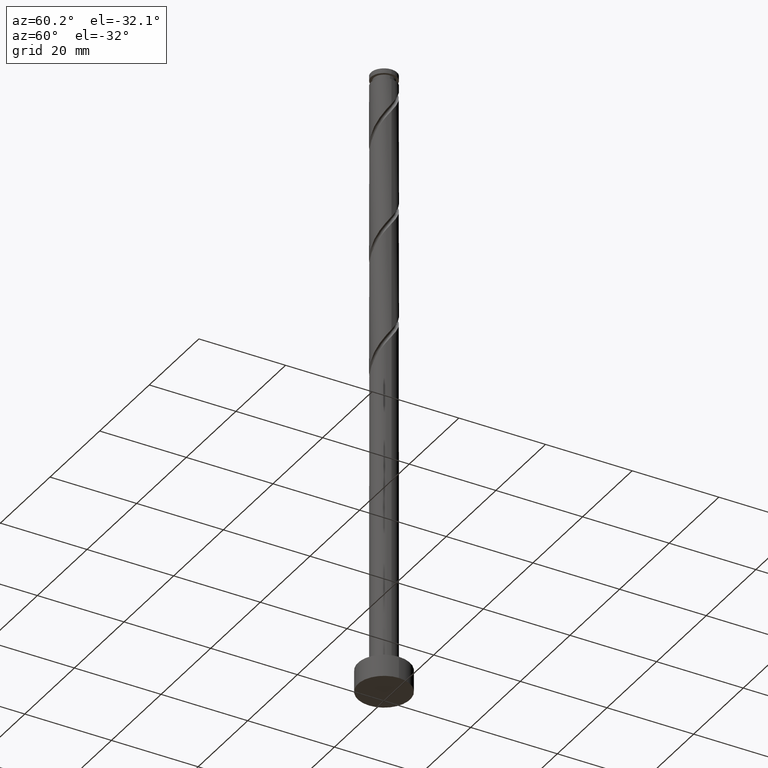
[diagram: clean part render]
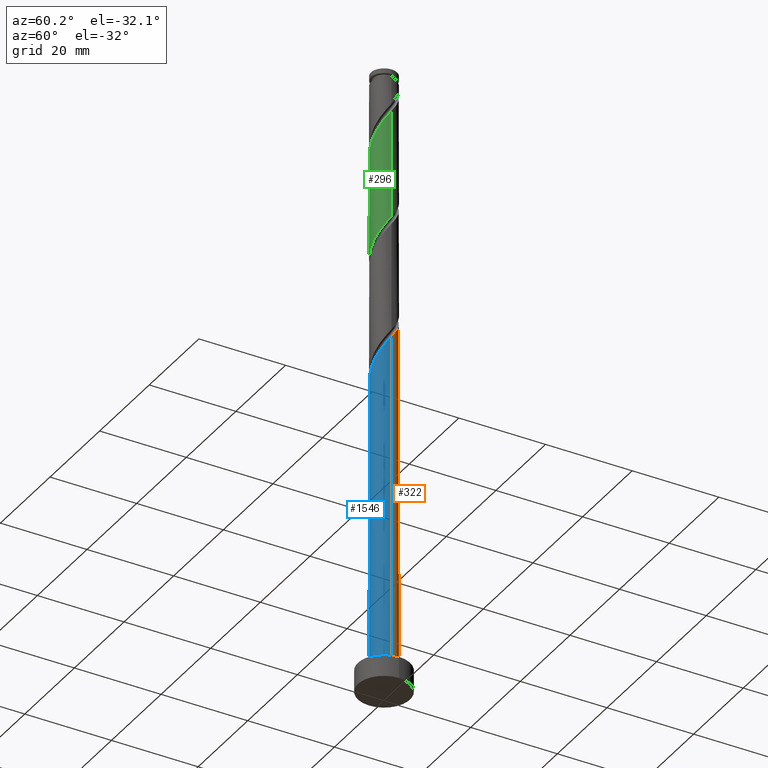
[diagram: same view with three faces highlighted in distinct colors, each labeled with its STEP entity id]
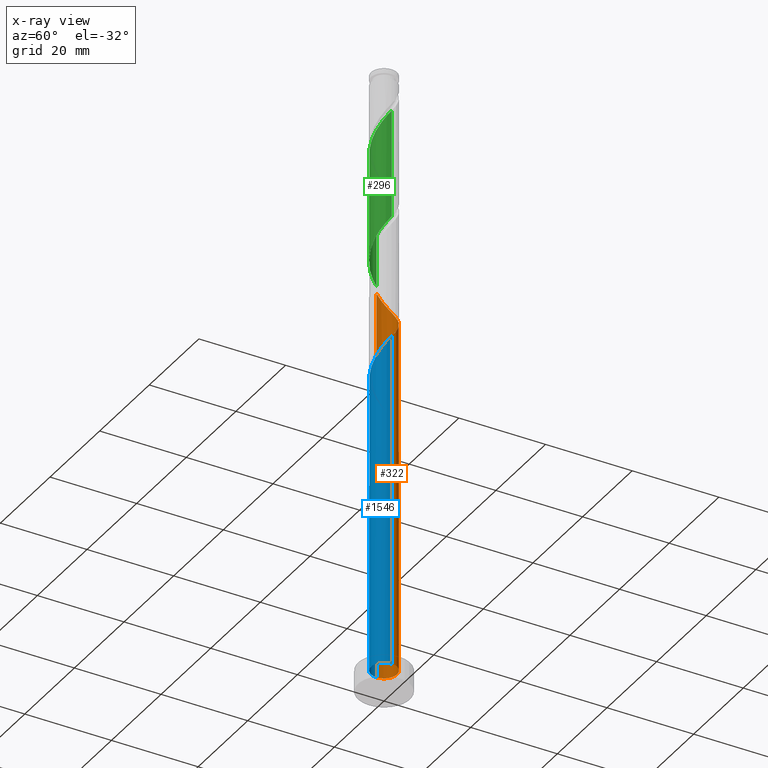
[diagram: x-ray of the same camera — body ghosted, the three highlighted faces saturated]
A machine part, auxiliary view with three faces highlighted in distinct colors.
The next image is the same camera in x-ray (body ghosted, the three faces saturated) — at least one of them is partly hidden behind the body in this view.
Their STEP definitions:

[orange] entity #322 — the highlighted cylindrical surface (edge-blend (fillet) strip) has radius 3 mm, axis along (-0, -0, -1).
#20 = CARTESIAN_POINT ( 'NONE',  ( -2.172641248934612523, 2.113215508140329213, 67.43503755739770611 ) ) ;
#30 = CARTESIAN_POINT ( 'NONE',  ( -1.489272404272451444, 2.639719205955340708, 66.22291634527648796 ) ) ;
#34 = CARTESIAN_POINT ( 'NONE',  ( 3.000000000000000444, 3.673940397442060361E-16, 145.5000000000000284 ) ) ;
#37 = CARTESIAN_POINT ( 'NONE',  ( -1.401103789956904544, 2.652717129617937708, 64.40473452709467495 ) ) ;
#54 = CYLINDRICAL_SURFACE ( 'NONE', #1260, 3.000000000000000444 ) ;
#55 =( BOUNDED_CURVE ( )  B_SPLINE_CURVE ( 2, ( #1555, #1565, #37, #410, #962, #940, #788, #418, #1427, #1290, #285 ),
 .UNSPECIFIED., .F., .T. ) 
 B_SPLINE_CURVE_WITH_KNOTS ( ( 3, 2, 2, 2, 2, 3 ),
 ( 0.000000000000000000, 0.01136363636363635528, 0.02272727272727271056, 0.03409090909090906063, 0.04545454545454542111, 0.05452521624175136333 ),
 .UNSPECIFIED. ) 
 CURVE ( )  GEOMETRIC_REPRESENTATION_ITEM ( )  RATIONAL_B_SPLINE_CURVE ( ( 0.9090909090909228274, 0.8998376744372251768, 0.9090909090909228274, 0.8998376744372251768, 0.9090909090909228274, 0.8998376744372251768, 0.9090909090909228274, 0.8998376744372251768, 0.9090909090909228274, 0.9017048011080025516, 0.9061101570135633443 ) ) 
 REPRESENTATION_ITEM ( '' )  );
#59 = CARTESIAN_POINT ( 'NONE',  ( -3.000000000000004885, -1.405941146128658515E-15, 69.00982550233922552 ) ) ;
#64 = CARTESIAN_POINT ( 'NONE',  ( 1.489272404272453221, 2.639719205955346926, 86.82897695133709703 ) ) ;
#71 = CARTESIAN_POINT ( 'NONE',  ( -3.000000000000000444, 0.000000000000000000, 145.5000000000000284 ) ) ;
#92 = DIRECTION ( 'NONE',  ( 1.000000000000000000, 0.000000000000000000, 0.000000000000000000 ) ) ;
#97 = CARTESIAN_POINT ( 'NONE',  ( 3.000000000000004885, 1.271329759797191292E-15, 82.34315883567256833 ) ) ;
#105 = CARTESIAN_POINT ( 'NONE',  ( 3.000000000000000444, 3.673940397442060361E-16, 5.000000000000000000 ) ) ;
#112 = DIRECTION ( 'NONE',  ( 0.000000000000000000, -0.000000000000000000, -1.000000000000000000 ) ) ;
#138 = EDGE_CURVE ( 'NONE', #1552, #1355, #417, .T. ) ;
#143 = CARTESIAN_POINT ( 'NONE',  ( -2.995035924847409436, 0.1725103152667151751, 70.46534058770075148 ) ) ;
#150 = CARTESIAN_POINT ( 'NONE',  ( -2.825114153412473961, 1.009321564313630848, 69.25321937557951912 ) ) ;
#155 = CARTESIAN_POINT ( 'NONE',  ( -1.782506933304614183, 2.451268816988041888, 91.67746179982192700 ) ) ;
#156 = CARTESIAN_POINT ( 'NONE',  ( -0.5969924622639716238, 2.940000000000005276, 63.19261331497345680 ) ) ;
#164 = CARTESIAN_POINT ( 'NONE',  ( 1.087261985366306583, 2.796043879336900684, 87.43503755739772032 ) ) ;
#167 = CARTESIAN_POINT ( 'NONE',  ( 0.1742842779187503410, 3.025834557752172138, 63.79867392103406587 ) ) ;
#191 = DIRECTION ( 'NONE',  ( -1.000000000000000000, 0.000000000000000000, 0.000000000000000000 ) ) ;
#255 = ORIENTED_EDGE ( 'NONE', *, *, #1656, .T. ) ;
#259 = EDGE_LOOP ( 'NONE', ( #823, #255, #1363, #1624, #698, #494, #1167, #942 ) ) ;
#285 = CARTESIAN_POINT ( 'NONE',  ( -3.000000000000004885, -1.405941146128658515E-15, 69.00982550233922552 ) ) ;
#317 = CARTESIAN_POINT ( 'NONE',  ( 2.825114153412479290, 1.009321564313631736, 83.79867392103406587 ) ) ;
#322 = ADVANCED_FACE ( 'NONE', ( #454 ), #54, .T. ) ;
#325 = CARTESIAN_POINT ( 'NONE',  ( 2.679995620803128364, 1.415511657632331222, 84.40473452709467495 ) ) ;
#333 = VERTEX_POINT ( 'NONE', #870 ) ;
#376 = VECTOR ( 'NONE', #1422, 1000.000000000000000 ) ;
#410 = CARTESIAN_POINT ( 'NONE',  ( -1.782506933304614183, 2.451268816988041888, 65.01079513315526981 ) ) ;
#417 = CIRCLE ( 'NONE', #1323, 3.000000000000000444 ) ;
#418 = CARTESIAN_POINT ( 'NONE',  ( -2.824796231958411230, 1.098442546668024100, 67.43503755739772032 ) ) ;
#432 = CARTESIAN_POINT ( 'NONE',  ( -2.091706021272611959, 2.150526893710452914, 92.28352240588255029 ) ) ;
#437 = CARTESIAN_POINT ( 'NONE',  ( -3.000000000000000000, 0.08632657957146849803, 70.58663645622281990 ) ) ;
#447 = CARTESIAN_POINT ( 'NONE',  ( 3.000000000000004885, 1.271329759797191292E-15, 82.34315883567256833 ) ) ;
#454 = FACE_OUTER_BOUND ( 'NONE', #259, .T. ) ;
#494 = ORIENTED_EDGE ( 'NONE', *, *, #982, .T. ) ;
#517 = CARTESIAN_POINT ( 'NONE',  ( 0.000000000000000000, 0.000000000000000000, 63.19261331497345680 ) ) ;
#526 = CARTESIAN_POINT ( 'NONE',  ( -0.6852515664601586121, 2.952368552718450889, 65.01079513315526981 ) ) ;
#538 = CARTESIAN_POINT ( 'NONE',  ( -2.679995620803123479, 1.415511657632330778, 68.64715876951892426 ) ) ;
#546 = EDGE_CURVE ( 'NONE', #934, #333, #768, .T. ) ;
#561 = CARTESIAN_POINT ( 'NONE',  ( 0.6852515664601606105, 2.952368552718455774, 88.04109816345831518 ) ) ;
#579 = CARTESIAN_POINT ( 'NONE',  ( 1.830956826603534982, 2.376467357047839624, 86.22291634527648796 ) ) ;
#613 = DIRECTION ( 'NONE',  ( -0.000000000000000000, -0.000000000000000000, -1.000000000000000000 ) ) ;
#620 = CARTESIAN_POINT ( 'NONE',  ( 3.000000000000004885, 0.08632657957146226690, 82.46525684039079351 ) ) ;
#638 = CARTESIAN_POINT ( 'NONE',  ( 2.995035924847414766, 0.1725103152667142037, 82.58655270891287614 ) ) ;
#645 = DIRECTION ( 'NONE',  ( -0.000000000000000000, -0.000000000000000000, -1.000000000000000000 ) ) ;
#652 = EDGE_CURVE ( 'NONE', #1650, #735, #55, .T. ) ;
#688 = CARTESIAN_POINT ( 'NONE',  ( -2.400905109240611068, 1.849784970432863052, 92.88958301194315936 ) ) ;
#698 = ORIENTED_EDGE ( 'NONE', *, *, #652, .F. ) ;
#714 = CARTESIAN_POINT ( 'NONE',  ( 0.2554836442707055788, 2.989101555235316621, 88.64715876951892426 ) ) ;
#731 = DIRECTION ( 'NONE',  ( -0.000000000000000000, -0.000000000000000000, -1.000000000000000000 ) ) ;
#732 = VECTOR ( 'NONE', #613, 1000.000000000000000 ) ;
#735 = VERTEX_POINT ( 'NONE', #59 ) ;
#756 = AXIS2_PLACEMENT_3D ( 'NONE', #517, #112, #1490 ) ;
#768 =( BOUNDED_CURVE ( )  B_SPLINE_CURVE ( 2, ( #1418, #437, #143, #1320, #150, #538, #1450, #20, #795, #30, #1191, #526, #1435, #167, #812 ),
 .UNSPECIFIED., .F., .T. ) 
 B_SPLINE_CURVE_WITH_KNOTS ( ( 3, 2, 2, 2, 2, 2, 2, 3 ),
 ( 0.9295252162417513286, 0.9318181818181817677, 0.9431818181818182323, 0.9545454545454545858, 0.9659090909090909394, 0.9772727272727272929, 0.9886363636363636465, 1.000000000000000000 ),
 .UNSPECIFIED. ) 
 CURVE ( )  GEOMETRIC_REPRESENTATION_ITEM ( )  RATIONAL_B_SPLINE_CURVE ( ( 0.9061101570135559058, 0.9072237824201380141, 0.9090909090909153889, 0.8998376744372178493, 0.9090909090909153889, 0.8998376744372178493, 0.9090909090909153889, 0.8998376744372178493, 0.9090909090909153889, 0.8998376744372178493, 0.9090909090909153889, 0.8998376744372178493, 0.9090909090909153889, 0.8998376744372178493, 0.9090909090909153889 ) ) 
 REPRESENTATION_ITEM ( '' )  );
#778 = LINE ( 'NONE', #908, #839 ) ;
#780 = EDGE_CURVE ( 'NONE', #735, #1355, #1116, .T. ) ;
#788 = CARTESIAN_POINT ( 'NONE',  ( -2.612850670599511815, 1.474113758550443354, 66.82897695133711125 ) ) ;
#795 = CARTESIAN_POINT ( 'NONE',  ( -1.830956826603531651, 2.376467357047835627, 66.82897695133708282 ) ) ;
#810 = CIRCLE ( 'NONE', #756, 3.000000000000000444 ) ;
#812 = CARTESIAN_POINT ( 'NONE',  ( 0.5969924622639726230, 2.939999999999999503, 63.19261331497344969 ) ) ;
#823 = ORIENTED_EDGE ( 'NONE', *, *, #1032, .F. ) ;
#839 = VECTOR ( 'NONE', #645, 1000.000000000000000 ) ;
#842 = CARTESIAN_POINT ( 'NONE',  ( 0.000000000000000000, 0.000000000000000000, 145.5000000000000284 ) ) ;
#870 = CARTESIAN_POINT ( 'NONE',  ( 0.5969924622639726230, 2.939999999999999503, 63.19261331497345680 ) ) ;
#889 =( BOUNDED_CURVE ( )  B_SPLINE_CURVE ( 2, ( #97, #620, #638, #1037, #317, #325, #1333, #1560, #579, #64, #164, #561, #714, #1220, #1062, #1307, #1550, #155, #432, #688, #1577, #944, #1568, #1188, #1083 ),
 .UNSPECIFIED., .F., .T. ) 
 B_SPLINE_CURVE_WITH_KNOTS ( ( 3, 2, 2, 2, 2, 2, 2, 2, 2, 2, 2, 2, 3 ),
 ( 0.1795252162417511899, 0.1818181818181817677, 0.1931818181818182323, 0.2045454545454545858, 0.2159090909090909394, 0.2272727272727272929, 0.2386363636363636465, 0.2500000000000000000, 0.2613636363636363535, 0.2727272727272727071, 0.2840909090909090606, 0.2954545454545454142, 0.3045252162417511621 ),
 .UNSPECIFIED. ) 
 CURVE ( )  GEOMETRIC_REPRESENTATION_ITEM ( )  RATIONAL_B_SPLINE_CURVE ( ( 0.9061101570135631222, 0.9072237824201452305, 0.9090909090909228274, 0.8998376744372251768, 0.9090909090909228274, 0.8998376744372251768, 0.9090909090909228274, 0.8998376744372251768, 0.9090909090909228274, 0.8998376744372251768, 0.9090909090909228274, 0.8998376744372251768, 0.9090909090909228274, 0.8998376744372251768, 0.9090909090909228274, 0.8998376744372251768, 0.9090909090909228274, 0.8998376744372251768, 0.9090909090909228274, 0.8998376744372251768, 0.9090909090909228274, 0.8998376744372251768, 0.9090909090909228274, 0.9017048011080027736, 0.9061101570135630112 ) ) 
 REPRESENTATION_ITEM ( '' )  );
#908 = CARTESIAN_POINT ( 'NONE',  ( -3.000000000000000444, 0.000000000000000000, 145.5000000000000284 ) ) ;
#934 = VERTEX_POINT ( 'NONE', #1164 ) ;
#940 = CARTESIAN_POINT ( 'NONE',  ( -2.400905109240611068, 1.849784970432863052, 66.22291634527648796 ) ) ;
#942 = ORIENTED_EDGE ( 'NONE', *, *, #1578, .F. ) ;
#944 = CARTESIAN_POINT ( 'NONE',  ( -2.824796231958411230, 1.098442546668024100, 94.10170422406436330 ) ) ;
#962 = CARTESIAN_POINT ( 'NONE',  ( -2.091706021272611959, 2.150526893710452914, 65.61685573921587888 ) ) ;
#982 = EDGE_CURVE ( 'NONE', #1650, #333, #810, .T. ) ;
#995 = CARTESIAN_POINT ( 'NONE',  ( -3.000000000000004885, -1.405941146128658515E-15, 95.67649216900592535 ) ) ;
#1009 = DIRECTION ( 'NONE',  ( 0.000000000000000000, 0.000000000000000000, 1.000000000000000000 ) ) ;
#1032 = EDGE_CURVE ( 'NONE', #1097, #1309, #889, .T. ) ;
#1037 = CARTESIAN_POINT ( 'NONE',  ( 2.970232686021831991, 0.6031314709949323616, 83.19261331497347101 ) ) ;
#1062 = CARTESIAN_POINT ( 'NONE',  ( -0.5969924622639717349, 2.940000000000005720, 89.85927998164014241 ) ) ;
#1073 = LINE ( 'NONE', #34, #376 ) ;
#1083 = CARTESIAN_POINT ( 'NONE',  ( -3.000000000000004885, -1.405941146128658515E-15, 95.67649216900592535 ) ) ;
#1097 = VERTEX_POINT ( 'NONE', #447 ) ;
#1116 = LINE ( 'NONE', #71, #732 ) ;
#1164 = CARTESIAN_POINT ( 'NONE',  ( -3.000000000000000000, 2.333264029745452767E-15, 70.70873446094101666 ) ) ;
#1167 = ORIENTED_EDGE ( 'NONE', *, *, #546, .F. ) ;
#1188 = CARTESIAN_POINT ( 'NONE',  ( -3.000000000000003109, 0.3435867821553751367, 95.19053221603461168 ) ) ;
#1191 = CARTESIAN_POINT ( 'NONE',  ( -1.087261985366304140, 2.796043879336896243, 65.61685573921587888 ) ) ;
#1220 = CARTESIAN_POINT ( 'NONE',  ( -0.1742842779187495639, 3.025834557752177467, 89.25321937557953333 ) ) ;
#1260 = AXIS2_PLACEMENT_3D ( 'NONE', #842, #731, #191 ) ;
#1290 = CARTESIAN_POINT ( 'NONE',  ( -3.000000000000005329, 0.3435867821553676427, 68.52386554936792606 ) ) ;
#1307 = CARTESIAN_POINT ( 'NONE',  ( -1.019700646609194683, 2.854165442247832196, 90.46534058770072306 ) ) ;
#1309 = VERTEX_POINT ( 'NONE', #995 ) ;
#1320 = CARTESIAN_POINT ( 'NONE',  ( -2.970232686021825774, 0.6031314709949324726, 69.85927998164011399 ) ) ;
#1323 = AXIS2_PLACEMENT_3D ( 'NONE', #1367, #1009, #92 ) ;
#1333 = CARTESIAN_POINT ( 'NONE',  ( 2.426318434868873553, 1.764363582886331328, 85.01079513315528402 ) ) ;
#1355 = VERTEX_POINT ( 'NONE', #1479 ) ;
#1363 = ORIENTED_EDGE ( 'NONE', *, *, #138, .T. ) ;
#1367 = CARTESIAN_POINT ( 'NONE',  ( 0.000000000000000000, 0.000000000000000000, 5.000000000000000000 ) ) ;
#1418 = CARTESIAN_POINT ( 'NONE',  ( -3.000000000000000444, 2.333264029745452372E-15, 70.70873446094101666 ) ) ;
#1422 = DIRECTION ( 'NONE',  ( -0.000000000000000000, -0.000000000000000000, -1.000000000000000000 ) ) ;
#1427 = CARTESIAN_POINT ( 'NONE',  ( -2.922317697815703497, 0.6782766935647639439, 68.04109816345831518 ) ) ;
#1435 = CARTESIAN_POINT ( 'NONE',  ( -0.2554836442707041355, 2.989101555235310848, 64.40473452709468916 ) ) ;
#1450 = CARTESIAN_POINT ( 'NONE',  ( -2.426318434868866891, 1.764363582886330217, 68.04109816345831518 ) ) ;
#1479 = CARTESIAN_POINT ( 'NONE',  ( -3.000000000000000444, 0.000000000000000000, 5.000000000000000000 ) ) ;
#1490 = DIRECTION ( 'NONE',  ( -1.000000000000000000, 0.000000000000000000, 0.000000000000000000 ) ) ;
#1550 = CARTESIAN_POINT ( 'NONE',  ( -1.401103789956904544, 2.652717129617937708, 91.07140119376130372 ) ) ;
#1552 = VERTEX_POINT ( 'NONE', #105 ) ;
#1555 = CARTESIAN_POINT ( 'NONE',  ( -0.5969924622639717349, 2.940000000000004832, 63.19261331497345680 ) ) ;
#1560 = CARTESIAN_POINT ( 'NONE',  ( 2.172641248934617408, 2.113215508140331433, 85.61685573921589310 ) ) ;
#1565 = CARTESIAN_POINT ( 'NONE',  ( -1.019700646609194683, 2.854165442247832196, 63.79867392103406587 ) ) ;
#1568 = CARTESIAN_POINT ( 'NONE',  ( -2.922317697815703497, 0.6782766935647639439, 94.70776483012497238 ) ) ;
#1577 = CARTESIAN_POINT ( 'NONE',  ( -2.612850670599511815, 1.474113758550443354, 93.49564361800376844 ) ) ;
#1578 = EDGE_CURVE ( 'NONE', #1309, #934, #778, .T. ) ;
#1624 = ORIENTED_EDGE ( 'NONE', *, *, #780, .F. ) ;
#1650 = VERTEX_POINT ( 'NONE', #156 ) ;
#1656 = EDGE_CURVE ( 'NONE', #1097, #1552, #1073, .T. ) ;

[blue] entity #1546 — the highlighted cylindrical surface (edge-blend (fillet) strip) has radius 3 mm, axis along (-0, -0, -1).
#14 = EDGE_CURVE ( 'NONE', #1355, #1552, #284, .T. ) ;
#34 = CARTESIAN_POINT ( 'NONE',  ( 3.000000000000000444, 3.673940397442060361E-16, 145.5000000000000284 ) ) ;
#51 = CARTESIAN_POINT ( 'NONE',  ( -2.995035924847414766, -0.1725103152667145090, 69.25321937557950491 ) ) ;
#59 = CARTESIAN_POINT ( 'NONE',  ( -3.000000000000004885, -1.405941146128658515E-15, 69.00982550233922552 ) ) ;
#71 = CARTESIAN_POINT ( 'NONE',  ( -3.000000000000000444, 0.000000000000000000, 145.5000000000000284 ) ) ;
#80 = CARTESIAN_POINT ( 'NONE',  ( -3.000000000000004441, -0.08632657957146905314, 69.13192350705743650 ) ) ;
#105 = CARTESIAN_POINT ( 'NONE',  ( 3.000000000000000444, 3.673940397442060361E-16, 5.000000000000000000 ) ) ;
#153 = AXIS2_PLACEMENT_3D ( 'NONE', #243, #385, #892 ) ;
#243 = CARTESIAN_POINT ( 'NONE',  ( 0.000000000000000000, 0.000000000000000000, 145.5000000000000284 ) ) ;
#284 = CIRCLE ( 'NONE', #1585, 3.000000000000000444 ) ;
#319 = CARTESIAN_POINT ( 'NONE',  ( -2.426318434868872220, -1.764363582886332216, 71.67746179982191279 ) ) ;
#328 = CARTESIAN_POINT ( 'NONE',  ( 1.401103789956903212, -2.652717129617938596, 77.73806786042800354 ) ) ;
#357 = ORIENTED_EDGE ( 'NONE', *, *, #14, .T. ) ;
#360 = CARTESIAN_POINT ( 'NONE',  ( 3.000000000000004885, 1.271329759797191292E-15, 82.34315883567256833 ) ) ;
#376 = VECTOR ( 'NONE', #1422, 1000.000000000000000 ) ;
#385 = DIRECTION ( 'NONE',  ( -0.000000000000000000, -0.000000000000000000, -1.000000000000000000 ) ) ;
#447 = CARTESIAN_POINT ( 'NONE',  ( 3.000000000000004885, 1.271329759797191292E-15, 82.34315883567256833 ) ) ;
#451 = CARTESIAN_POINT ( 'NONE',  ( 0.1742842779187500357, -3.025834557752177467, 75.91988604224619053 ) ) ;
#471 = CARTESIAN_POINT ( 'NONE',  ( -1.830956826603535426, -2.376467357047839624, 72.88958301194318778 ) ) ;
#495 = FACE_OUTER_BOUND ( 'NONE', #554, .T. ) ;
#501 = CARTESIAN_POINT ( 'NONE',  ( 2.400905109240611068, -1.849784970432863496, 79.55624967860984498 ) ) ;
#554 = EDGE_LOOP ( 'NONE', ( #724, #1378, #1413, #357 ) ) ;
#583 = CARTESIAN_POINT ( 'NONE',  ( -1.087261985366308137, -2.796043879336900240, 74.10170422406436330 ) ) ;
#613 = DIRECTION ( 'NONE',  ( -0.000000000000000000, -0.000000000000000000, -1.000000000000000000 ) ) ;
#633 = CARTESIAN_POINT ( 'NONE',  ( 2.091706021272611959, -2.150526893710452914, 78.95018907254922169 ) ) ;
#704 = DIRECTION ( 'NONE',  ( 1.000000000000000000, 0.000000000000000000, 0.000000000000000000 ) ) ;
#724 = ORIENTED_EDGE ( 'NONE', *, *, #1656, .F. ) ;
#732 = VECTOR ( 'NONE', #613, 1000.000000000000000 ) ;
#735 = VERTEX_POINT ( 'NONE', #59 ) ;
#780 = EDGE_CURVE ( 'NONE', #735, #1355, #1116, .T. ) ;
#875 = CARTESIAN_POINT ( 'NONE',  ( 2.612850670599510927, -1.474113758550444020, 80.16231028467042563 ) ) ;
#886 = EDGE_CURVE ( 'NONE', #735, #1097, #1161, .T. ) ;
#892 = DIRECTION ( 'NONE',  ( -1.000000000000000000, 0.000000000000000000, 0.000000000000000000 ) ) ;
#972 = CARTESIAN_POINT ( 'NONE',  ( -3.000000000000004885, -1.405941146128658515E-15, 69.00982550233922552 ) ) ;
#979 = CARTESIAN_POINT ( 'NONE',  ( 1.019700646609194239, -2.854165442247833084, 77.13200725436742289 ) ) ;
#1073 = LINE ( 'NONE', #34, #376 ) ;
#1097 = VERTEX_POINT ( 'NONE', #447 ) ;
#1102 = CARTESIAN_POINT ( 'NONE',  ( -0.2554836442707052457, -2.989101555235316621, 75.31382543618560987 ) ) ;
#1116 = LINE ( 'NONE', #71, #732 ) ;
#1133 = CARTESIAN_POINT ( 'NONE',  ( 2.824796231958411230, -1.098442546668023212, 80.76837089073104892 ) ) ;
#1161 =( BOUNDED_CURVE ( )  B_SPLINE_CURVE ( 2, ( #972, #80, #51, #1581, #1457, #1610, #319, #1335, #471, #1480, #583, #1602, #1102, #451, #1466, #979, #328, #1365, #633, #501, #875, #1133, #1652, #1506, #360 ),
 .UNSPECIFIED., .F., .T. ) 
 B_SPLINE_CURVE_WITH_KNOTS ( ( 3, 2, 2, 2, 2, 2, 2, 2, 2, 2, 2, 2, 3 ),
 ( 0.05452521624175136333, 0.05681818181818176772, 0.06818181818181823228, 0.07954545454545458583, 0.09090909090909093937, 0.1022727272727272929, 0.1136363636363636465, 0.1250000000000000000, 0.1363636363636363535, 0.1477272727272727071, 0.1590909090909090606, 0.1704545454545454142, 0.1795252162417511899 ),
 .UNSPECIFIED. ) 
 CURVE ( )  GEOMETRIC_REPRESENTATION_ITEM ( )  RATIONAL_B_SPLINE_CURVE ( ( 0.9061101570135633443, 0.9072237824201454526, 0.9090909090909228274, 0.8998376744372251768, 0.9090909090909228274, 0.8998376744372251768, 0.9090909090909228274, 0.8998376744372251768, 0.9090909090909228274, 0.8998376744372251768, 0.9090909090909228274, 0.8998376744372251768, 0.9090909090909228274, 0.8998376744372251768, 0.9090909090909228274, 0.8998376744372251768, 0.9090909090909228274, 0.8998376744372251768, 0.9090909090909228274, 0.8998376744372251768, 0.9090909090909228274, 0.8998376744372251768, 0.9090909090909228274, 0.9017048011080027736, 0.9061101570135631222 ) ) 
 REPRESENTATION_ITEM ( '' )  );
#1275 = CYLINDRICAL_SURFACE ( 'NONE', #153, 3.000000000000000444 ) ;
#1331 = CARTESIAN_POINT ( 'NONE',  ( 0.000000000000000000, 0.000000000000000000, 5.000000000000000000 ) ) ;
#1335 = CARTESIAN_POINT ( 'NONE',  ( -2.172641248934616964, -2.113215508140332766, 72.28352240588256450 ) ) ;
#1355 = VERTEX_POINT ( 'NONE', #1479 ) ;
#1365 = CARTESIAN_POINT ( 'NONE',  ( 1.782506933304614183, -2.451268816988041888, 78.34412846648861262 ) ) ;
#1378 = ORIENTED_EDGE ( 'NONE', *, *, #886, .F. ) ;
#1413 = ORIENTED_EDGE ( 'NONE', *, *, #780, .T. ) ;
#1422 = DIRECTION ( 'NONE',  ( -0.000000000000000000, -0.000000000000000000, -1.000000000000000000 ) ) ;
#1457 = CARTESIAN_POINT ( 'NONE',  ( -2.825114153412479290, -1.009321564313632402, 70.46534058770070885 ) ) ;
#1466 = CARTESIAN_POINT ( 'NONE',  ( 0.5969924622639720679, -2.940000000000005720, 76.52594664830681381 ) ) ;
#1479 = CARTESIAN_POINT ( 'NONE',  ( -3.000000000000000444, 0.000000000000000000, 5.000000000000000000 ) ) ;
#1480 = CARTESIAN_POINT ( 'NONE',  ( -1.489272404272454553, -2.639719205955346037, 73.49564361800374002 ) ) ;
#1506 = CARTESIAN_POINT ( 'NONE',  ( 3.000000000000003553, -0.3435867821553740264, 81.85719888270125466 ) ) ;
#1540 = DIRECTION ( 'NONE',  ( 0.000000000000000000, 0.000000000000000000, 1.000000000000000000 ) ) ;
#1546 = ADVANCED_FACE ( 'NONE', ( #495 ), #1275, .T. ) ;
#1552 = VERTEX_POINT ( 'NONE', #105 ) ;
#1581 = CARTESIAN_POINT ( 'NONE',  ( -2.970232686021831991, -0.6031314709949325836, 69.85927998164014241 ) ) ;
#1585 = AXIS2_PLACEMENT_3D ( 'NONE', #1331, #1540, #704 ) ;
#1602 = CARTESIAN_POINT ( 'NONE',  ( -0.6852515664601603884, -2.952368552718455774, 74.70776483012497238 ) ) ;
#1610 = CARTESIAN_POINT ( 'NONE',  ( -2.679995620803127920, -1.415511657632332110, 71.07140119376131793 ) ) ;
#1652 = CARTESIAN_POINT ( 'NONE',  ( 2.922317697815704829, -0.6782766935647639439, 81.37443149679162957 ) ) ;
#1656 = EDGE_CURVE ( 'NONE', #1097, #1552, #1073, .T. ) ;

[green] entity #296 — the highlighted cylindrical surface (edge-blend (fillet) strip) has radius 3 mm, axis along (-0, -0, -1).
#23 = VERTEX_POINT ( 'NONE', #570 ) ;
#58 = CARTESIAN_POINT ( 'NONE',  ( -0.2554836442707052457, -2.989101555235316621, 128.6471587695188816 ) ) ;
#62 = CARTESIAN_POINT ( 'NONE',  ( -3.000000000000000444, 0.000000000000000000, 145.5000000000000284 ) ) ;
#87 = CARTESIAN_POINT ( 'NONE',  ( -3.000000000000005329, -0.08632657957146021299, 122.4652568403907509 ) ) ;
#106 = CARTESIAN_POINT ( 'NONE',  ( 1.087261985366304140, -2.796043879336896243, 105.6168557392159073 ) ) ;
#119 = CARTESIAN_POINT ( 'NONE',  ( 2.999999999999999556, -2.976407319995801555E-15, 110.7087344609410309 ) ) ;
#127 = CARTESIAN_POINT ( 'NONE',  ( -0.1742842779187510904, -3.025834557752173026, 103.7986739210340801 ) ) ;
#237 = CARTESIAN_POINT ( 'NONE',  ( -0.5969924622639722900, -2.939999999999999503, 103.1926133149734568 ) ) ;
#250 = CARTESIAN_POINT ( 'NONE',  ( 3.000000000000004885, -0.3435867821553679757, 135.1905322160345690 ) ) ;
#265 = CARTESIAN_POINT ( 'NONE',  ( 2.400905109240611068, -1.849784970432863496, 132.8895830119431309 ) ) ;
#295 = LINE ( 'NONE', #1203, #871 ) ;
#296 = ADVANCED_FACE ( 'NONE', ( #1112 ), #1461, .T. ) ;
#306 = EDGE_LOOP ( 'NONE', ( #914, #776, #1174, #563 ) ) ;
#358 = CARTESIAN_POINT ( 'NONE',  ( 2.612850670599510927, -1.474113758550444020, 133.4956436180037258 ) ) ;
#369 = CARTESIAN_POINT ( 'NONE',  ( -1.401103789956902101, -2.652717129617932823, 101.9804921028522671 ) ) ;
#372 = EDGE_CURVE ( 'NONE', #752, #901, #463, .T. ) ;
#378 = CARTESIAN_POINT ( 'NONE',  ( 1.489272404272450778, -2.639719205955341153, 106.2229163452765022 ) ) ;
#387 = CARTESIAN_POINT ( 'NONE',  ( 2.970232686021824886, -0.6031314709949326947, 109.8592799816401282 ) ) ;
#406 = VERTEX_POINT ( 'NONE', #1118 ) ;
#463 = LINE ( 'NONE', #62, #533 ) ;
#489 = CARTESIAN_POINT ( 'NONE',  ( -2.825114153412479290, -1.009321564313632402, 123.7986739210340801 ) ) ;
#491 = CARTESIAN_POINT ( 'NONE',  ( -3.000000000000000000, 2.333264029745452767E-15, 97.37540112760768807 ) ) ;
#511 = CARTESIAN_POINT ( 'NONE',  ( -1.019700646609193129, -2.854165442247826867, 102.5865527089128904 ) ) ;
#523 = CARTESIAN_POINT ( 'NONE',  ( 3.000000000000004885, 1.271329759797191292E-15, 135.6764921690059111 ) ) ;
#533 = VECTOR ( 'NONE', #1105, 1000.000000000000000 ) ;
#563 = ORIENTED_EDGE ( 'NONE', *, *, #931, .F. ) ;
#570 = CARTESIAN_POINT ( 'NONE',  ( 3.000000000000004885, 1.271329759797191292E-15, 135.6764921690059111 ) ) ;
#581 =( BOUNDED_CURVE ( )  B_SPLINE_CURVE ( 2, ( #119, #1374, #894, #387, #1030, #1283, #1149, #1398, #1511, #378, #106, #1645, #647, #127, #237, #511, #369, #754, #903, #1391, #1661, #629, #1141, #746, #1639 ),
 .UNSPECIFIED., .F., .T. ) 
 B_SPLINE_CURVE_WITH_KNOTS ( ( 3, 2, 2, 2, 2, 2, 2, 2, 2, 2, 2, 2, 3 ),
 ( 0.5545252162417512176, 0.5568181818181817677, 0.5681818181818182323, 0.5795454545454545858, 0.5909090909090909394, 0.6022727272727272929, 0.6136363636363636465, 0.6250000000000000000, 0.6363636363636363535, 0.6477272727272727071, 0.6590909090909090606, 0.6704545454545454142, 0.6795252162417512176 ),
 .UNSPECIFIED. ) 
 CURVE ( )  GEOMETRIC_REPRESENTATION_ITEM ( )  RATIONAL_B_SPLINE_CURVE ( ( 0.9061101570135556837, 0.9072237824201379031, 0.9090909090909153889, 0.8998376744372178493, 0.9090909090909153889, 0.8998376744372178493, 0.9090909090909153889, 0.8998376744372178493, 0.9090909090909153889, 0.8998376744372178493, 0.9090909090909153889, 0.8998376744372178493, 0.9090909090909153889, 0.8998376744372178493, 0.9090909090909153889, 0.8998376744372178493, 0.9090909090909153889, 0.8998376744372178493, 0.9090909090909153889, 0.8998376744372178493, 0.9090909090909153889, 0.8998376744372178493, 0.9090909090909153889, 0.9017048011079953351, 0.9061101570135556837 ) ) 
 REPRESENTATION_ITEM ( '' )  );
#582 = CARTESIAN_POINT ( 'NONE',  ( 0.1742842779187500357, -3.025834557752177467, 129.2532193755795049 ) ) ;
#629 = CARTESIAN_POINT ( 'NONE',  ( -2.824796231958406789, -1.098442546668021214, 98.95018907254922169 ) ) ;
#647 = CARTESIAN_POINT ( 'NONE',  ( 0.2554836442707032473, -2.989101555235310848, 104.4047345270946749 ) ) ;
#710 = CARTESIAN_POINT ( 'NONE',  ( -0.6852515664601603884, -2.952368552718455774, 128.0410981634583152 ) ) ;
#716 = CARTESIAN_POINT ( 'NONE',  ( -1.489272404272454553, -2.639719205955346037, 126.8289769513370686 ) ) ;
#746 = CARTESIAN_POINT ( 'NONE',  ( -2.999999999999998224, -0.3435867821553716395, 97.86136108057900174 ) ) ;
#750 = CARTESIAN_POINT ( 'NONE',  ( 0.000000000000000000, 0.000000000000000000, 145.5000000000000284 ) ) ;
#752 = VERTEX_POINT ( 'NONE', #1473 ) ;
#753 = CARTESIAN_POINT ( 'NONE',  ( 1.401103789956903212, -2.652717129617938596, 131.0714011937613463 ) ) ;
#754 = CARTESIAN_POINT ( 'NONE',  ( -1.782506933304611296, -2.451268816988037003, 101.3744314967916580 ) ) ;
#776 = ORIENTED_EDGE ( 'NONE', *, *, #1389, .F. ) ;
#816 = DIRECTION ( 'NONE',  ( -0.000000000000000000, -0.000000000000000000, -1.000000000000000000 ) ) ;
#871 = VECTOR ( 'NONE', #816, 1000.000000000000000 ) ;
#894 = CARTESIAN_POINT ( 'NONE',  ( 2.995035924847409436, -0.1725103152667155915, 110.4653405877007231 ) ) ;
#901 = VERTEX_POINT ( 'NONE', #491 ) ;
#903 = CARTESIAN_POINT ( 'NONE',  ( -2.091706021272608851, -2.150526893710448473, 100.7683708907310489 ) ) ;
#914 = ORIENTED_EDGE ( 'NONE', *, *, #1099, .F. ) ;
#931 = EDGE_CURVE ( 'NONE', #406, #901, #581, .T. ) ;
#988 = CARTESIAN_POINT ( 'NONE',  ( -2.995035924847414766, -0.1725103152667145090, 122.5865527089128335 ) ) ;
#1004 = CARTESIAN_POINT ( 'NONE',  ( -2.172641248934616964, -2.113215508140332766, 125.6168557392158789 ) ) ;
#1023 = CARTESIAN_POINT ( 'NONE',  ( 1.782506933304614183, -2.451268816988041888, 131.6774617998219412 ) ) ;
#1030 = CARTESIAN_POINT ( 'NONE',  ( 2.825114153412473961, -1.009321564313631292, 109.2532193755795191 ) ) ;
#1056 = AXIS2_PLACEMENT_3D ( 'NONE', #750, #1584, #1605 ) ;
#1099 = EDGE_CURVE ( 'NONE', #23, #406, #295, .T. ) ;
#1100 = CARTESIAN_POINT ( 'NONE',  ( 1.019700646609194239, -2.854165442247833084, 130.4653405877007231 ) ) ;
#1105 = DIRECTION ( 'NONE',  ( -0.000000000000000000, -0.000000000000000000, -1.000000000000000000 ) ) ;
#1112 = FACE_OUTER_BOUND ( 'NONE', #306, .T. ) ;
#1118 = CARTESIAN_POINT ( 'NONE',  ( 3.000000000000000000, -2.976407319995801555E-15, 110.7087344609410451 ) ) ;
#1123 = CARTESIAN_POINT ( 'NONE',  ( -2.970232686021831991, -0.6031314709949325836, 123.1926133149734568 ) ) ;
#1141 = CARTESIAN_POINT ( 'NONE',  ( -2.922317697815699500, -0.6782766935647618345, 98.34412846648862683 ) ) ;
#1149 = CARTESIAN_POINT ( 'NONE',  ( 2.426318434868867779, -1.764363582886329995, 108.0410981634583010 ) ) ;
#1174 = ORIENTED_EDGE ( 'NONE', *, *, #372, .T. ) ;
#1203 = CARTESIAN_POINT ( 'NONE',  ( 3.000000000000000444, 3.673940397442060361E-16, 145.5000000000000284 ) ) ;
#1240 = CARTESIAN_POINT ( 'NONE',  ( -3.000000000000004885, -1.405941146128658515E-15, 122.3431588356725399 ) ) ;
#1283 = CARTESIAN_POINT ( 'NONE',  ( 2.679995620803123479, -1.415511657632330333, 108.6471587695189243 ) ) ;
#1334 = CARTESIAN_POINT ( 'NONE',  ( -2.679995620803127920, -1.415511657632332110, 124.4047345270946892 ) ) ;
#1342 = CARTESIAN_POINT ( 'NONE',  ( -2.426318434868872220, -1.764363582886332216, 125.0107951331552840 ) ) ;
#1374 = CARTESIAN_POINT ( 'NONE',  ( 2.999999999999999556, -0.08632657957146488981, 110.5866364562227773 ) ) ;
#1389 = EDGE_CURVE ( 'NONE', #752, #23, #1547, .T. ) ;
#1390 = CARTESIAN_POINT ( 'NONE',  ( 2.091706021272611959, -2.150526893710452914, 132.2835224058825645 ) ) ;
#1391 = CARTESIAN_POINT ( 'NONE',  ( -2.400905109240607072, -1.849784970432859277, 100.1623102846704398 ) ) ;
#1398 = CARTESIAN_POINT ( 'NONE',  ( 2.172641248934612968, -2.113215508140329213, 107.4350375573976919 ) ) ;
#1402 = CARTESIAN_POINT ( 'NONE',  ( 2.824796231958411230, -1.098442546668023212, 134.1017042240644059 ) ) ;
#1461 = CYLINDRICAL_SURFACE ( 'NONE', #1056, 3.000000000000000444 ) ;
#1471 = CARTESIAN_POINT ( 'NONE',  ( 0.5969924622639720679, -2.940000000000005720, 129.8592799816401282 ) ) ;
#1473 = CARTESIAN_POINT ( 'NONE',  ( -3.000000000000004885, -1.405941146128658515E-15, 122.3431588356725399 ) ) ;
#1489 = CARTESIAN_POINT ( 'NONE',  ( -1.087261985366308137, -2.796043879336900240, 127.4350375573977061 ) ) ;
#1510 = CARTESIAN_POINT ( 'NONE',  ( 2.922317697815704829, -0.6782766935647639439, 134.7077648301249724 ) ) ;
#1511 = CARTESIAN_POINT ( 'NONE',  ( 1.830956826603530763, -2.376467357047836071, 106.8289769513370970 ) ) ;
#1547 =( BOUNDED_CURVE ( )  B_SPLINE_CURVE ( 2, ( #1240, #87, #988, #1123, #489, #1334, #1342, #1004, #1617, #716, #1489, #710, #58, #582, #1471, #1100, #753, #1023, #1390, #265, #358, #1402, #1510, #250, #523 ),
 .UNSPECIFIED., .F., .T. ) 
 B_SPLINE_CURVE_WITH_KNOTS ( ( 3, 2, 2, 2, 2, 2, 2, 2, 2, 2, 2, 2, 3 ),
 ( 0.5545252162417512176, 0.5568181818181818787, 0.5681818181818181213, 0.5795454545454545858, 0.5909090909090908283, 0.6022727272727272929, 0.6136363636363636465, 0.6250000000000000000, 0.6363636363636363535, 0.6477272727272727071, 0.6590909090909091717, 0.6704545454545454142, 0.6795252162417514397 ),
 .UNSPECIFIED. ) 
 CURVE ( )  GEOMETRIC_REPRESENTATION_ITEM ( )  RATIONAL_B_SPLINE_CURVE ( ( 0.9061101570135630112, 0.9072237824201452305, 0.9090909090909228274, 0.8998376744372251768, 0.9090909090909228274, 0.8998376744372251768, 0.9090909090909228274, 0.8998376744372251768, 0.9090909090909228274, 0.8998376744372251768, 0.9090909090909228274, 0.8998376744372251768, 0.9090909090909228274, 0.8998376744372251768, 0.9090909090909228274, 0.8998376744372251768, 0.9090909090909228274, 0.8998376744372251768, 0.9090909090909228274, 0.8998376744372251768, 0.9090909090909228274, 0.8998376744372251768, 0.9090909090909228274, 0.9017048011080026626, 0.9061101570135633443 ) ) 
 REPRESENTATION_ITEM ( '' )  );
#1584 = DIRECTION ( 'NONE',  ( -0.000000000000000000, -0.000000000000000000, -1.000000000000000000 ) ) ;
#1605 = DIRECTION ( 'NONE',  ( -1.000000000000000000, 0.000000000000000000, 0.000000000000000000 ) ) ;
#1617 = CARTESIAN_POINT ( 'NONE',  ( -1.830956826603535426, -2.376467357047839624, 126.2229163452765164 ) ) ;
#1639 = CARTESIAN_POINT ( 'NONE',  ( -2.999999999999999556, 2.333264029745452767E-15, 97.37540112760768807 ) ) ;
#1645 = CARTESIAN_POINT ( 'NONE',  ( 0.6852515664601592782, -2.952368552718450889, 105.0107951331552698 ) ) ;
#1661 = CARTESIAN_POINT ( 'NONE',  ( -2.612850670599506930, -1.474113758550440467, 99.55624967860981656 ) ) ;